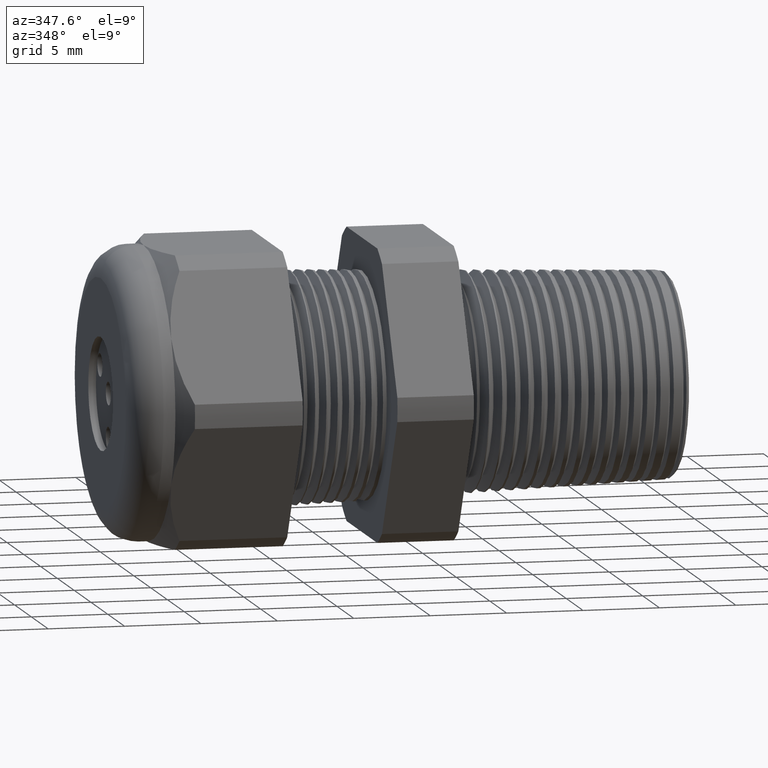
[diagram: clean part render]
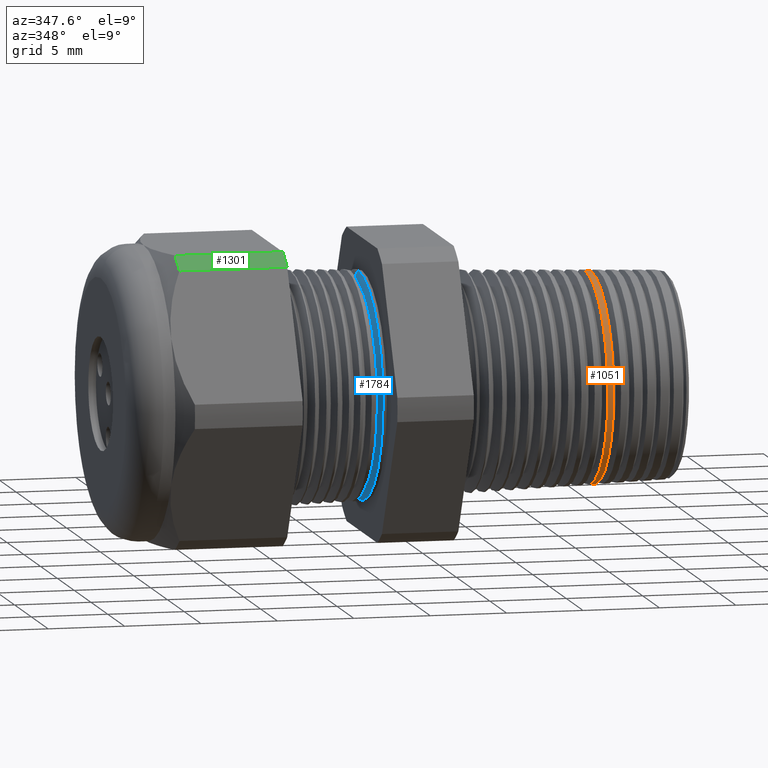
[diagram: same view with three faces highlighted in distinct colors, each labeled with its STEP entity id]
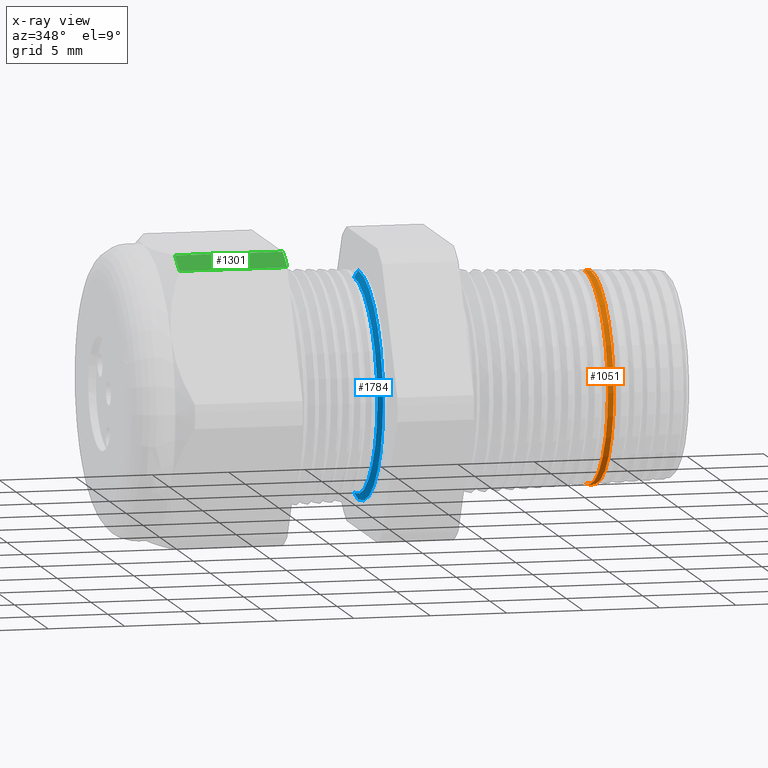
[diagram: x-ray of the same camera — body ghosted, the three highlighted faces saturated]
A machine part, auxiliary view with three faces highlighted in distinct colors.
The next image is the same camera in x-ray (body ghosted, the three faces saturated) — at least one of them is partly hidden behind the body in this view.
Their STEP definitions:

[orange] entity #1051 — the highlighted conical surface has half-angle 2 deg.
#310 = VERTEX_POINT ( 'NONE', #2533 ) ;
#352 = VERTEX_POINT ( 'NONE', #2635 ) ;
#357 = VERTEX_POINT ( 'NONE', #2628 ) ;
#430 = VERTEX_POINT ( 'NONE', #2787 ) ;
#1032 = EDGE_CURVE ( 'NONE', #357, #430, #3920, .T. ) ;
#1035 = EDGE_CURVE ( 'NONE', #310, #352, #3911, .T. ) ;
#1051 = ADVANCED_FACE ( 'NONE', ( #3998 ), #3997, .T. ) ;
#1052 = EDGE_LOOP ( 'NONE', ( #1053, #1054, #1107, #1108 ) ) ;
#1053 = ORIENTED_EDGE ( 'NONE', *, *, #1032, .F. ) ;
#1054 = ORIENTED_EDGE ( 'NONE', *, *, #1055, .F. ) ;
#1055 = EDGE_CURVE ( 'NONE', #310, #357, #3996, .T. ) ;
#1107 = ORIENTED_EDGE ( 'NONE', *, *, #1035, .T. ) ;
#1108 = ORIENTED_EDGE ( 'NONE', *, *, #1109, .F. ) ;
#1109 = EDGE_CURVE ( 'NONE', #430, #352, #4076, .T. ) ;
#2533 = CARTESIAN_POINT ( 'NONE',  ( 0.08228380906208869500, 0.0000000000000000000, 0.2709057626162547600 ) ) ;
#2628 = CARTESIAN_POINT ( 'NONE',  ( 0.08228380906208869500, 3.320875705648867700E-017, -0.2709057626162548200 ) ) ;
#2635 = CARTESIAN_POINT ( 'NONE',  ( 0.06714568676934576400, 0.0000000000000000000, 0.2714343974953774000 ) ) ;
#2787 = CARTESIAN_POINT ( 'NONE',  ( 0.06714568676934576400, 3.324112660712042500E-017, -0.2714343974953774000 ) ) ;
#3908 = DIRECTION ( 'NONE',  ( -0.9993908270190959800, 0.0000000000000000000, 0.03489949670249394000 ) ) ;
#3909 = VECTOR ( 'NONE', #3908, 39.37007874015748100 ) ;
#3910 = CARTESIAN_POINT ( 'NONE',  ( 0.2800000000000000300, 0.0000000000000000000, 0.2640013610877269300 ) ) ;
#3911 = LINE ( 'NONE', #3910, #3909 ) ;
#3912 = DIRECTION ( 'NONE',  ( -0.9993908270190959800, 4.273955692856281300E-018, -0.03489949670249394000 ) ) ;
#3913 = VECTOR ( 'NONE', #3912, 39.37007874015748100 ) ;
#3914 = CARTESIAN_POINT ( 'NONE',  ( 0.2800000000000000300, 3.233084218266294100E-017, -0.2640013610877269300 ) ) ;
#3920 = LINE ( 'NONE', #3914, #3913 ) ;
#3988 = DIRECTION ( 'NONE',  ( 0.0000000000000000000, 0.0000000000000000000, 1.000000000000000000 ) ) ;
#3989 = DIRECTION ( 'NONE',  ( 1.000000000000000000, 0.0000000000000000000, 0.0000000000000000000 ) ) ;
#3990 = CARTESIAN_POINT ( 'NONE',  ( 0.08228380906208869500, 0.0000000000000000000, 0.0000000000000000000 ) ) ;
#3991 = AXIS2_PLACEMENT_3D ( 'NONE', #3990, #3989, #3988 ) ;
#3992 = DIRECTION ( 'NONE',  ( 0.0000000000000000000, 0.0000000000000000000, 1.000000000000000000 ) ) ;
#3993 = DIRECTION ( 'NONE',  ( -1.000000000000000000, 0.0000000000000000000, 0.0000000000000000000 ) ) ;
#3994 = CARTESIAN_POINT ( 'NONE',  ( 0.2800000000000000300, 0.0000000000000000000, 0.0000000000000000000 ) ) ;
#3995 = AXIS2_PLACEMENT_3D ( 'NONE', #3994, #3993, #3992 ) ;
#3996 = CIRCLE ( 'NONE', #3991, 0.2709057626162547600 ) ;
#3997 = CONICAL_SURFACE ( 'NONE', #3995, 0.2640013610877269300, 0.03490658503987955500 ) ;
#3998 = FACE_OUTER_BOUND ( 'NONE', #1052, .T. ) ;
#4072 = DIRECTION ( 'NONE',  ( 0.0000000000000000000, 0.0000000000000000000, -1.000000000000000000 ) ) ;
#4073 = DIRECTION ( 'NONE',  ( -1.000000000000000000, 0.0000000000000000000, 0.0000000000000000000 ) ) ;
#4074 = CARTESIAN_POINT ( 'NONE',  ( 0.06714568676934576400, 0.0000000000000000000, 0.0000000000000000000 ) ) ;
#4075 = AXIS2_PLACEMENT_3D ( 'NONE', #4074, #4073, #4072 ) ;
#4076 = CIRCLE ( 'NONE', #4075, 0.2714343974953774000 ) ;

[blue] entity #1784 — the highlighted conical surface has half-angle 58 deg.
#82 = VERTEX_POINT ( 'NONE', #2124 ) ;
#390 = VERTEX_POINT ( 'NONE', #2683 ) ;
#402 = EDGE_CURVE ( 'NONE', #82, #415, #2722, .T. ) ;
#403 = VERTEX_POINT ( 'NONE', #2718 ) ;
#408 = EDGE_CURVE ( 'NONE', #390, #403, #2711, .T. ) ;
#415 = VERTEX_POINT ( 'NONE', #2759 ) ;
#1505 = EDGE_CURVE ( 'NONE', #403, #415, #4825, .T. ) ;
#1763 = ORIENTED_EDGE ( 'NONE', *, *, #402, .F. ) ;
#1764 = ORIENTED_EDGE ( 'NONE', *, *, #1781, .T. ) ;
#1765 = ORIENTED_EDGE ( 'NONE', *, *, #408, .T. ) ;
#1766 = ORIENTED_EDGE ( 'NONE', *, *, #1505, .T. ) ;
#1781 = EDGE_CURVE ( 'NONE', #82, #390, #5227, .T. ) ;
#1784 = ADVANCED_FACE ( 'NONE', ( #5218 ), #5217, .T. ) ;
#1785 = EDGE_LOOP ( 'NONE', ( #1763, #1764, #1765, #1766 ) ) ;
#2124 = CARTESIAN_POINT ( 'NONE',  ( -0.5273136650747176600, 0.0000000000000000000, 0.2745114984791284800 ) ) ;
#2683 = CARTESIAN_POINT ( 'NONE',  ( -0.5273136650747176600, 3.472114913434518900E-017, -0.2745114984791284800 ) ) ;
#2710 = CARTESIAN_POINT ( 'NONE',  ( -0.5273136650747176600, 0.0000000000000000000, -0.2745114984791284800 ) ) ;
#2711 = LINE ( 'NONE', #2710, #2771 ) ;
#2718 = CARTESIAN_POINT ( 'NONE',  ( -0.5165007497886048300, 3.573712611272171200E-017, -0.2918157801710933300 ) ) ;
#2719 = DIRECTION ( 'NONE',  ( 0.5299192642331908000, 1.038559386480984800E-016, 0.8480480961564348400 ) ) ;
#2720 = VECTOR ( 'NONE', #2719, 39.37007874015748100 ) ;
#2721 = CARTESIAN_POINT ( 'NONE',  ( -0.5273136650747176600, 3.361796279416081600E-017, 0.2745114984791284800 ) ) ;
#2722 = LINE ( 'NONE', #2721, #2720 ) ;
#2759 = CARTESIAN_POINT ( 'NONE',  ( -0.5165007497886048300, 0.0000000000000000000, 0.2918157801710933300 ) ) ;
#2770 = DIRECTION ( 'NONE',  ( 0.5299192642331908000, 0.0000000000000000000, -0.8480480961564348400 ) ) ;
#2771 = VECTOR ( 'NONE', #2770, 39.37007874015748100 ) ;
#4825 = CIRCLE ( 'NONE', #4890, 0.2918157801710933300 ) ;
#4887 = DIRECTION ( 'NONE',  ( 0.0000000000000000000, 0.0000000000000000000, -1.000000000000000000 ) ) ;
#4888 = DIRECTION ( 'NONE',  ( -1.000000000000000000, 0.0000000000000000000, 0.0000000000000000000 ) ) ;
#4889 = CARTESIAN_POINT ( 'NONE',  ( -0.5165007497886048300, 0.0000000000000000000, 0.0000000000000000000 ) ) ;
#4890 = AXIS2_PLACEMENT_3D ( 'NONE', #4889, #4888, #4887 ) ;
#5214 = CARTESIAN_POINT ( 'NONE',  ( -0.5273136650747176600, 0.0000000000000000000, 0.0000000000000000000 ) ) ;
#5215 = AXIS2_PLACEMENT_3D ( 'NONE', #5214, #5275, #5274 ) ;
#5217 = CONICAL_SURFACE ( 'NONE', #5215, 0.2745114984791284800, 1.012290966156727900 ) ;
#5218 = FACE_OUTER_BOUND ( 'NONE', #1785, .T. ) ;
#5219 = DIRECTION ( 'NONE',  ( 0.0000000000000000000, 0.0000000000000000000, -1.000000000000000000 ) ) ;
#5220 = DIRECTION ( 'NONE',  ( 1.000000000000000000, 0.0000000000000000000, 0.0000000000000000000 ) ) ;
#5221 = CARTESIAN_POINT ( 'NONE',  ( -0.5273136650747176600, 0.0000000000000000000, 0.0000000000000000000 ) ) ;
#5222 = AXIS2_PLACEMENT_3D ( 'NONE', #5221, #5220, #5219 ) ;
#5227 = CIRCLE ( 'NONE', #5222, 0.2745114984791284800 ) ;
#5274 = DIRECTION ( 'NONE',  ( 0.0000000000000000000, 0.0000000000000000000, -1.000000000000000000 ) ) ;
#5275 = DIRECTION ( 'NONE',  ( 1.000000000000000000, 0.0000000000000000000, 0.0000000000000000000 ) ) ;

[green] entity #1301 — the highlighted cylindrical surface (partial cylindrical patch) has radius 10.5727 mm, axis along (-1, 0, 0).
#1278 = VERTEX_POINT ( 'NONE', #4449 ) ;
#1279 = ORIENTED_EDGE ( 'NONE', *, *, #1280, .T. ) ;
#1280 = EDGE_CURVE ( 'NONE', #1278, #1292, #4448, .T. ) ;
#1281 = ORIENTED_EDGE ( 'NONE', *, *, #1290, .F. ) ;
#1282 = ORIENTED_EDGE ( 'NONE', *, *, #1283, .F. ) ;
#1283 = EDGE_CURVE ( 'NONE', #1305, #1291, #4443, .T. ) ;
#1290 = EDGE_CURVE ( 'NONE', #1291, #1292, #4487, .T. ) ;
#1291 = VERTEX_POINT ( 'NONE', #4483 ) ;
#1292 = VERTEX_POINT ( 'NONE', #4482 ) ;
#1301 = ADVANCED_FACE ( 'NONE', ( #4459 ), #4518, .T. ) ;
#1302 = EDGE_LOOP ( 'NONE', ( #1303, #1279, #1281, #1282 ) ) ;
#1303 = ORIENTED_EDGE ( 'NONE', *, *, #1304, .T. ) ;
#1304 = EDGE_CURVE ( 'NONE', #1305, #1278, #4517, .T. ) ;
#1305 = VERTEX_POINT ( 'NONE', #4510 ) ;
#4439 = DIRECTION ( 'NONE',  ( 0.0000000000000000000, 0.0000000000000000000, -1.000000000000000000 ) ) ;
#4440 = DIRECTION ( 'NONE',  ( 1.000000000000000000, 0.0000000000000000000, 0.0000000000000000000 ) ) ;
#4441 = CARTESIAN_POINT ( 'NONE',  ( -0.7508661417322833900, 0.0000000000000000000, 0.0000000000000000000 ) ) ;
#4442 = AXIS2_PLACEMENT_3D ( 'NONE', #4441, #4440, #4439 ) ;
#4443 = CIRCLE ( 'NONE', #4442, 0.4162500000000000100 ) ;
#4444 = DIRECTION ( 'NONE',  ( 0.0000000000000000000, 0.0000000000000000000, -1.000000000000000000 ) ) ;
#4445 = DIRECTION ( 'NONE',  ( 1.000000000000000000, 0.0000000000000000000, 0.0000000000000000000 ) ) ;
#4446 = CARTESIAN_POINT ( 'NONE',  ( -1.028513779527559000, 0.0000000000000000000, 0.0000000000000000000 ) ) ;
#4447 = AXIS2_PLACEMENT_3D ( 'NONE', #4446, #4445, #4444 ) ;
#4448 = CIRCLE ( 'NONE', #4447, 0.4162500000000000100 ) ;
#4449 = CARTESIAN_POINT ( 'NONE',  ( -1.028513779527559000, -0.1806628420566886400, 0.3749999999999999400 ) ) ;
#4459 = FACE_OUTER_BOUND ( 'NONE', #1302, .T. ) ;
#4470 = CARTESIAN_POINT ( 'NONE',  ( 0.2800000000000000300, 0.0000000000000000000, 0.0000000000000000000 ) ) ;
#4482 = CARTESIAN_POINT ( 'NONE',  ( -1.028513779527559000, -0.2344281053908204800, 0.3439586107409878200 ) ) ;
#4483 = CARTESIAN_POINT ( 'NONE',  ( -0.7508661417322833900, -0.2344281053908204800, 0.3439586107409878200 ) ) ;
#4484 = DIRECTION ( 'NONE',  ( -1.000000000000000000, 0.0000000000000000000, 0.0000000000000000000 ) ) ;
#4485 = VECTOR ( 'NONE', #4484, 39.37007874015748100 ) ;
#4486 = CARTESIAN_POINT ( 'NONE',  ( 0.2800000000000000300, -0.2344281053908204800, 0.3439586107409878200 ) ) ;
#4487 = LINE ( 'NONE', #4486, #4485 ) ;
#4510 = CARTESIAN_POINT ( 'NONE',  ( -0.7508661417322833900, -0.1806628420566886700, 0.3749999999999999400 ) ) ;
#4511 = DIRECTION ( 'NONE',  ( -1.000000000000000000, 0.0000000000000000000, 0.0000000000000000000 ) ) ;
#4512 = VECTOR ( 'NONE', #4511, 39.37007874015748100 ) ;
#4513 = CARTESIAN_POINT ( 'NONE',  ( 0.2800000000000000300, -0.1806628420566886700, 0.3749999999999999400 ) ) ;
#4514 = DIRECTION ( 'NONE',  ( 0.0000000000000000000, 0.0000000000000000000, 1.000000000000000000 ) ) ;
#4515 = DIRECTION ( 'NONE',  ( -1.000000000000000000, 0.0000000000000000000, 0.0000000000000000000 ) ) ;
#4516 = AXIS2_PLACEMENT_3D ( 'NONE', #4470, #4515, #4514 ) ;
#4517 = LINE ( 'NONE', #4513, #4512 ) ;
#4518 = CYLINDRICAL_SURFACE ( 'NONE', #4516, 0.4162500000000000100 ) ;